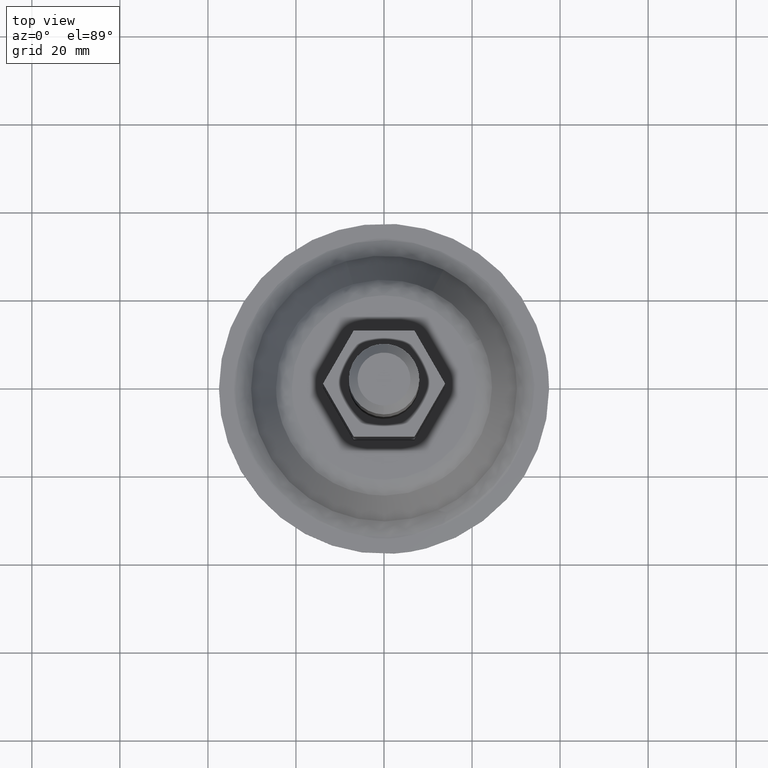
[diagram: clean part render]
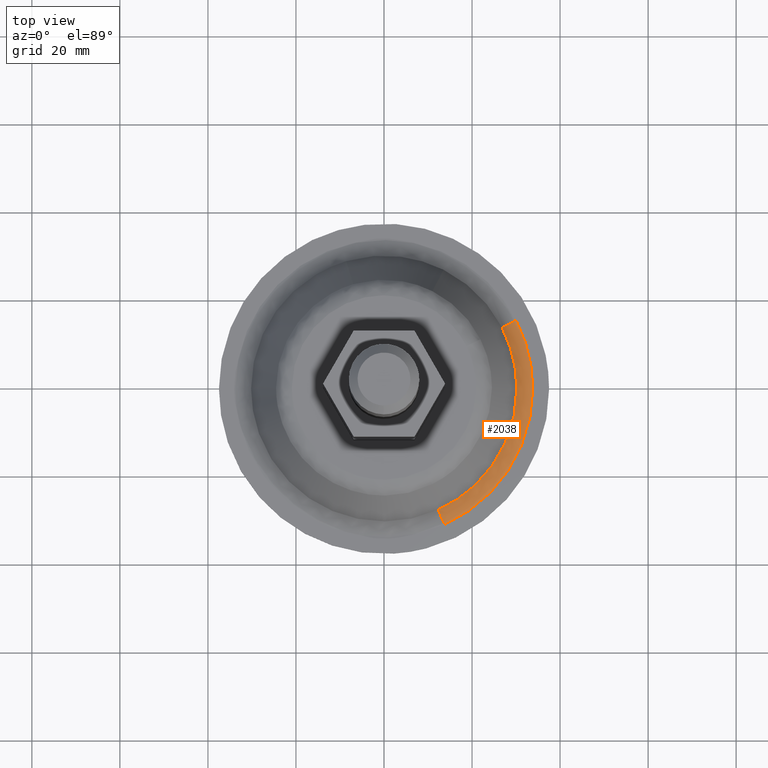
[diagram: same view with one face highlighted and labeled with its STEP entity id]
A machine part, top view. The second image highlights one B-rep face of the part: STEP entity #2038.
In plain terms, the highlighted face is a freeform B-spline surface patch.
Its self-contained STEP definition (entity closure, byte-faithful):
#1353=CARTESIAN_POINT('',(26.811445478011841,13.873994691196600,4.237050467254566));
#1354=VERTEX_POINT('',#1353);
#1474=CARTESIAN_POINT('',(12.317877356381739,-27.561045603082832,4.237050467581096));
#1475=VERTEX_POINT('',#1474);
#1491=CARTESIAN_POINT('',(30.188430520198551,0.0,4.237050468566710));
#1492=VERTEX_POINT('',#1491);
#1493=CARTESIAN_POINT('',(30.188430520198551,0.0,4.237050468566710));
#1494=CARTESIAN_POINT('',(30.188430520198558,-19.574146798580909,4.237050468566711));
#1495=CARTESIAN_POINT('',(12.317877356381738,-27.561045603082835,4.237050467581096));
#1503=(BOUNDED_CURVE()B_SPLINE_CURVE(2,(#1493,#1494,#1495),.UNSPECIFIED.,.F.,.U.)B_SPLINE_CURVE_WITH_KNOTS((3,3),(0.500000000000000,0.680709483577526),.UNSPECIFIED.)CURVE()GEOMETRIC_REPRESENTATION_ITEM()RATIONAL_B_SPLINE_CURVE((1.0,0.788285670739447,0.882641638331988))REPRESENTATION_ITEM(''));
#1504=EDGE_CURVE('',#1492,#1475,#1503,.T.);
#1506=CARTESIAN_POINT('',(26.811445478011837,13.873994691196602,4.237050467254566));
#1507=CARTESIAN_POINT('',(30.188430520198551,7.347983086538263,4.237050468566711));
#1508=CARTESIAN_POINT('',(30.188430520198551,0.0,4.237050468566710));
#1516=(BOUNDED_CURVE()B_SPLINE_CURVE(2,(#1506,#1507,#1508),.UNSPECIFIED.,.F.,.U.)B_SPLINE_CURVE_WITH_KNOTS((3,3),(0.421825371002655,0.500000000000000),.UNSPECIFIED.)CURVE()GEOMETRIC_REPRESENTATION_ITEM()RATIONAL_B_SPLINE_CURVE((0.874103860135780,0.908412725133680,1.0))REPRESENTATION_ITEM(''));
#1517=EDGE_CURVE('',#1354,#1492,#1516,.T.);
#1912=CARTESIAN_POINT('',(13.782938127606171,-30.839094698453209,2.000000000000201));
#1913=VERTEX_POINT('',#1912);
#1931=CARTESIAN_POINT('',(13.782938127606167,-30.839094698453209,2.000000000000200));
#1932=CARTESIAN_POINT('',(12.766055531011414,-28.563836810796737,2.000000001926971));
#1933=CARTESIAN_POINT('',(12.317877356381736,-27.561045603082825,4.237050467581095));
#1941=(BOUNDED_CURVE()B_SPLINE_CURVE(2,(#1931,#1932,#1933),.UNSPECIFIED.,.F.,.U.)B_SPLINE_CURVE_WITH_KNOTS((3,3),(-1.645059919522258,-0.344443061160723),.UNSPECIFIED.)CURVE()GEOMETRIC_REPRESENTATION_ITEM()RATIONAL_B_SPLINE_CURVE((0.884983933294497,0.752043508409372,0.887147264429790))REPRESENTATION_ITEM(''));
#1942=EDGE_CURVE('',#1913,#1475,#1941,.T.);
#1948=CARTESIAN_POINT('',(30.000338812942349,15.524136576835691,2.000000000000201));
#1949=VERTEX_POINT('',#1948);
#1950=CARTESIAN_POINT('',(30.000338812942349,15.524136576835691,2.000000000000200));
#1951=CARTESIAN_POINT('',(27.786962960506610,14.378791211129641,2.000000000119437));
#1952=CARTESIAN_POINT('',(26.811445478011844,13.873994691196600,4.237050467254566));
#1960=(BOUNDED_CURVE()B_SPLINE_CURVE(2,(#1950,#1951,#1952),.UNSPECIFIED.,.F.,.U.)B_SPLINE_CURVE_WITH_KNOTS((3,3),(-1.645059920413114,-0.344443061384672),.UNSPECIFIED.)CURVE()GEOMETRIC_REPRESENTATION_ITEM()RATIONAL_B_SPLINE_CURVE((0.905349035020298,0.769349407162589,0.907562148134197))REPRESENTATION_ITEM(''));
#1961=EDGE_CURVE('',#1949,#1354,#1960,.T.);
#1981=CARTESIAN_POINT('',(30.186713149888277,15.620578843014071,2.005508355765294));
#1982=CARTESIAN_POINT('',(45.807291992902336,-14.566134306874197,2.005508355765293));
#1983=CARTESIAN_POINT('',(15.620578843014080,-30.186713149888277,2.005508355765294));
#1984=CARTESIAN_POINT('',(14.756648915429100,-30.633766973922462,2.005508355765293));
#1985=CARTESIAN_POINT('',(13.868565072117768,-31.030678964935525,2.005508355765294));
#1986=CARTESIAN_POINT('',(27.709262367564104,14.338583844657489,1.858963613252032));
#1987=CARTESIAN_POINT('',(42.047846212221579,-13.370678522906605,1.858963613252032));
#1988=CARTESIAN_POINT('',(14.338583844657489,-27.709262367564104,1.858963613252032));
#1989=CARTESIAN_POINT('',(13.545557425657265,-28.119626080932871,1.858963613252032));
#1990=CARTESIAN_POINT('',(12.730359424585746,-28.483963146753968,1.858963613252033));
#1991=CARTESIAN_POINT('',(26.733881309599180,13.833857919636406,4.427354636554964));
#1992=CARTESIAN_POINT('',(40.567739229235578,-12.900023389962769,4.427354636554961));
#1993=CARTESIAN_POINT('',(13.833857919636406,-26.733881309599180,4.427354636554964));
#1994=CARTESIAN_POINT('',(13.068746460525698,-27.129799997777944,4.427354636554961));
#1995=CARTESIAN_POINT('',(12.282243871052955,-27.481312201356133,4.427354636554962));
#2003=(BOUNDED_SURFACE()B_SPLINE_SURFACE(2,2,((#1981,#1986,#1991),(#1982,#1987,#1992),(#1983,#1988,#1993),(#1984,#1989,#1994),(#1985,#1990,#1995)),.UNSPECIFIED.,.F.,.F.,.U.)B_SPLINE_SURFACE_WITH_KNOTS((3,2,3),(3,3),(0.0,56.314526925918422,58.567105854726442),(0.0,5.033719587443038),.UNSPECIFIED.)GEOMETRIC_REPRESENTATION_ITEM()RATIONAL_B_SPLINE_SURFACE(((0.919619680610673,0.754968258488854,0.922053798625210),(0.650269312272414,0.533843175158067,0.651990493626702),(0.919619680610673,0.754968258488854,0.922053798625210),(0.908845676152044,0.746123263590875,0.911251276727368),(0.898933591228114,0.737985867609915,0.901312955757185)))REPRESENTATION_ITEM('')SURFACE());
#2004=CARTESIAN_POINT('',(33.778974900876548,0.0,2.000000000000200));
#2005=VERTEX_POINT('',#2004);
#2006=CARTESIAN_POINT('',(33.778974900876548,0.0,2.000000000000200));
#2007=CARTESIAN_POINT('',(33.778974900876548,-21.902252022345380,2.000000000000199));
#2008=CARTESIAN_POINT('',(13.782938127606171,-30.839094698453213,2.000000000000200));
#2016=(BOUNDED_CURVE()B_SPLINE_CURVE(2,(#2006,#2007,#2008),.UNSPECIFIED.,.F.,.U.)B_SPLINE_CURVE_WITH_KNOTS((3,3),(0.500000000000000,0.680709483576904),.UNSPECIFIED.)CURVE()GEOMETRIC_REPRESENTATION_ITEM()RATIONAL_B_SPLINE_CURVE((1.0,0.788285670740175,0.882641638331339))REPRESENTATION_ITEM(''));
#2017=EDGE_CURVE('',#2005,#1913,#2016,.T.);
#2018=ORIENTED_EDGE('',*,*,#2017,.F.);
#2019=CARTESIAN_POINT('',(30.000338812942356,15.524136576835694,2.000000000000201));
#2020=CARTESIAN_POINT('',(33.778974900876548,8.221935753971710,2.000000000000200));
#2021=CARTESIAN_POINT('',(33.778974900876548,0.0,2.000000000000200));
#2029=(BOUNDED_CURVE()B_SPLINE_CURVE(2,(#2019,#2020,#2021),.UNSPECIFIED.,.F.,.U.)B_SPLINE_CURVE_WITH_KNOTS((3,3),(0.421825371003207,0.500000000000000),.UNSPECIFIED.)CURVE()GEOMETRIC_REPRESENTATION_ITEM()RATIONAL_B_SPLINE_CURVE((0.874103860136265,0.908412725134327,1.0))REPRESENTATION_ITEM(''));
#2030=EDGE_CURVE('',#1949,#2005,#2029,.T.);
#2031=ORIENTED_EDGE('',*,*,#2030,.F.);
#2032=ORIENTED_EDGE('',*,*,#1961,.T.);
#2033=ORIENTED_EDGE('',*,*,#1517,.T.);
#2034=ORIENTED_EDGE('',*,*,#1504,.T.);
#2035=ORIENTED_EDGE('',*,*,#1942,.F.);
#2036=EDGE_LOOP('',(#2018,#2031,#2032,#2033,#2034,#2035));
#2037=FACE_OUTER_BOUND('',#2036,.T.);
#2038=ADVANCED_FACE('',(#2037),#2003,.F.);